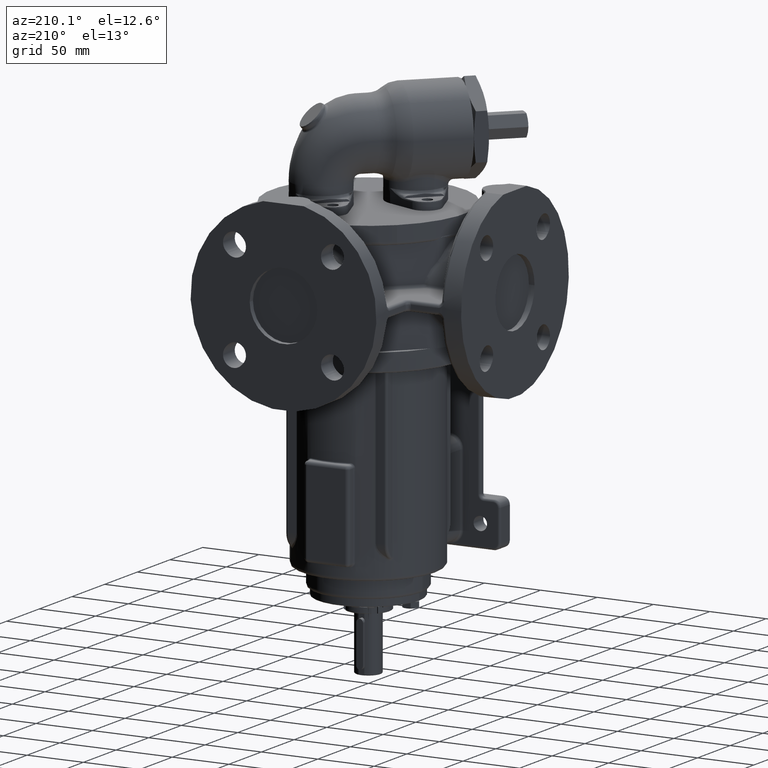
[diagram: clean part render]
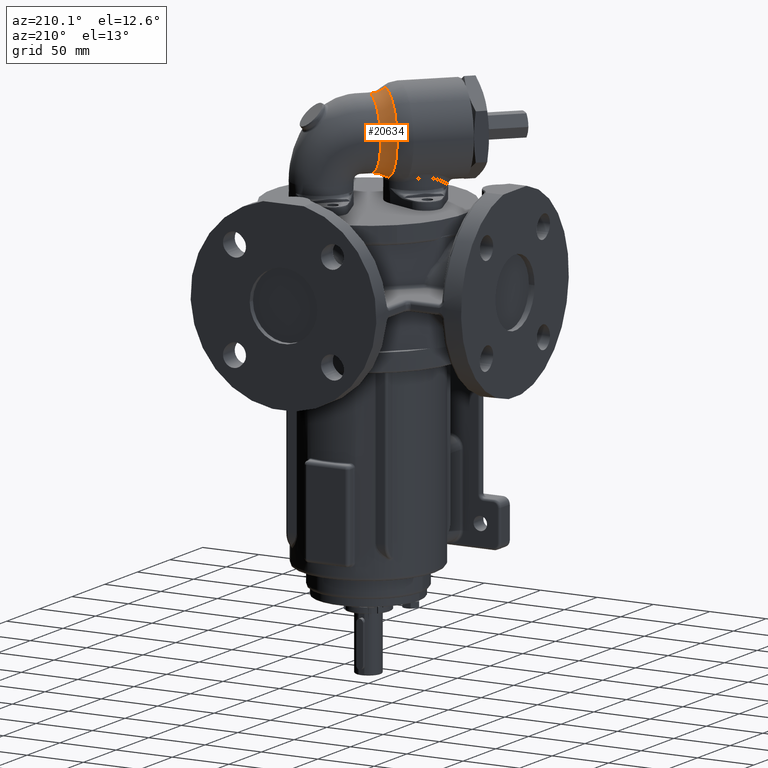
[diagram: same view with one face highlighted and labeled with its STEP entity id]
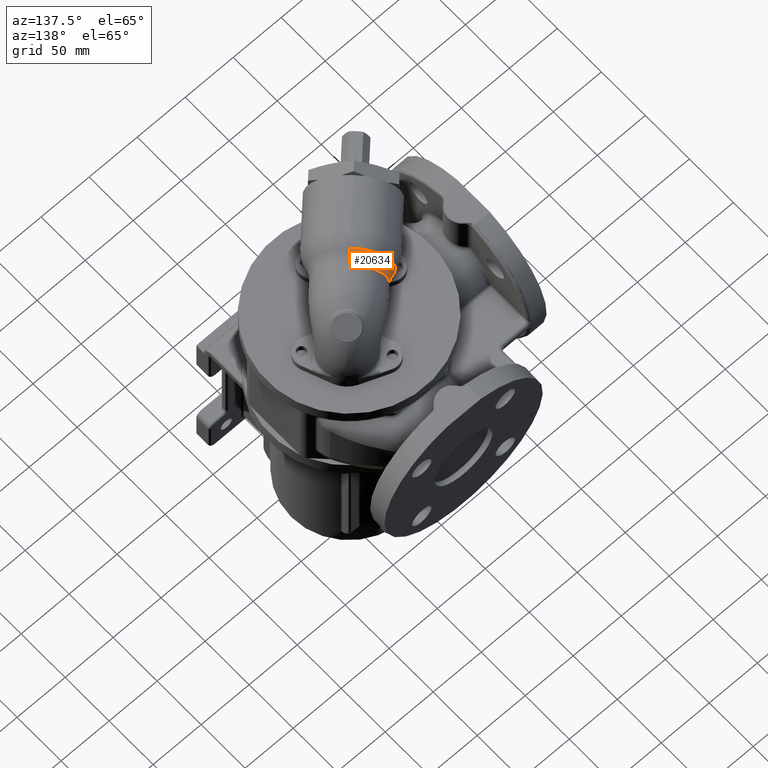
[diagram: same view with one face highlighted and labeled with its STEP entity id]
A machine part, auxiliary view. The second image highlights one B-rep face of the part: STEP entity #20634.
A second angle (auxiliary view) of the same face is appended — the face is thin or edge-on in the first view.
In plain terms, the highlighted toroidal blend (fillet) surface has major radius 51 mm and minor (blend) radius 20 mm.
Its self-contained STEP definition (entity closure, byte-faithful):
#2315=CARTESIAN_POINT('',(-1.732149372372E1,-1.770389373560E0,
1.277722769904E2));
#2316=CARTESIAN_POINT('',(-1.645948378693E1,-1.987988503852E0,
1.278796190056E2));
#2317=CARTESIAN_POINT('',(-1.472824232996E1,-2.508128496690E0,
1.280078359196E2));
#2318=CARTESIAN_POINT('',(-1.204520258204E1,-3.667754195904E0,
1.280381360435E2));
#2319=CARTESIAN_POINT('',(-9.483008962168E0,-5.240664378846E0,
1.279995629278E2));
#2320=CARTESIAN_POINT('',(-7.967286821456E0,-6.528402722491E0,
1.279843683349E2));
#2321=CARTESIAN_POINT('',(-7.247844508027E0,-7.247844508027E0,
1.279843682149E2));
#2323=CARTESIAN_POINT('',(-1.060660171780E0,-1.060660171780E0,1.1E2));
#2324=DIRECTION('',(7.071067811865E-1,-7.071067811865E-1,0.E0));
#2325=DIRECTION('',(0.E0,0.E0,1.E0));
#2326=AXIS2_PLACEMENT_3D('',#2323,#2324,#2325);
#2328=CARTESIAN_POINT('',(-1.060660171780E0,-1.060660171780E0,1.61E2));
#2329=DIRECTION('',(7.071067811865E-1,7.071067811865E-1,0.E0));
#2330=DIRECTION('',(0.E0,0.E0,-1.E0));
#2331=AXIS2_PLACEMENT_3D('',#2328,#2329,#2330);
#2333=CARTESIAN_POINT('',(-1.060660171780E0,-1.060660171780E0,2.12E2));
#2334=DIRECTION('',(-7.071067811865E-1,7.071067811865E-1,0.E0));
#2335=DIRECTION('',(0.E0,0.E0,-1.E0));
#2336=AXIS2_PLACEMENT_3D('',#2333,#2334,#2335);
#2368=CARTESIAN_POINT('',(-1.732149372372E1,-1.770389373560E0,
1.277722769904E2));
#2370=CARTESIAN_POINT('',(-9.545941546018E0,-9.545941546018E0,1.61E2));
#2371=DIRECTION('',(7.071067811865E-1,7.071067811865E-1,0.E0));
#2372=DIRECTION('',(-2.221586336050E-1,2.221586336050E-1,-9.493635146926E-1));
#2373=AXIS2_PLACEMENT_3D('',#2370,#2371,#2372);
#13618=CARTESIAN_POINT('',(-1.060660171780E0,-1.060660171780E0,1.92E2));
#13619=CARTESIAN_POINT('',(-9.545941546018E0,-9.545941546018E0,1.96E2));
#13620=VERTEX_POINT('',#13618);
#13621=VERTEX_POINT('',#13619);
#13622=CARTESIAN_POINT('',(-1.060660171780E0,-1.060660171780E0,1.3E2));
#13623=VERTEX_POINT('',#13622);
#13627=VERTEX_POINT('',#2368);
#13630=VERTEX_POINT('',#2321);
#20618=CARTESIAN_POINT('',(-1.060660171780E0,-1.060660171780E0,1.61E2));
#20619=DIRECTION('',(-7.071067811865E-1,-7.071067811865E-1,0.E0));
#20620=DIRECTION('',(0.E0,0.E0,-1.E0));
#20621=AXIS2_PLACEMENT_3D('',#20618,#20619,#20620);
#20622=TOROIDAL_SURFACE('',#20621,5.1E1,2.E1);
#20623=ORIENTED_EDGE('',*,*,#20608,.T.);
#20625=ORIENTED_EDGE('',*,*,#20624,.F.);
#20627=ORIENTED_EDGE('',*,*,#20626,.T.);
#20629=ORIENTED_EDGE('',*,*,#20628,.T.);
#20631=ORIENTED_EDGE('',*,*,#20630,.F.);
#20632=EDGE_LOOP('',(#20623,#20625,#20627,#20629,#20631));
#20633=FACE_OUTER_BOUND('',#20632,.F.);
#20634=ADVANCED_FACE('',(#20633),#20622,.F.);
#2322=B_SPLINE_CURVE_WITH_KNOTS('',3,(#2315,#2316,#2317,#2318,#2319,#2320,
#2321),.UNSPECIFIED.,.F.,.F.,(4,1,1,1,4),(0.E0,2.5E-1,5.E-1,7.5E-1,1.E0),
.UNSPECIFIED.);
#2327=CIRCLE('',#2326,2.E1);
#2332=CIRCLE('',#2331,3.1E1);
#2337=CIRCLE('',#2336,2.E1);
#2374=CIRCLE('',#2373,3.5E1);
#20608=EDGE_CURVE('',#13627,#13630,#2322,.T.);
#20624=EDGE_CURVE('',#13623,#13630,#2327,.T.);
#20626=EDGE_CURVE('',#13623,#13620,#2332,.T.);
#20628=EDGE_CURVE('',#13620,#13621,#2337,.T.);
#20630=EDGE_CURVE('',#13627,#13621,#2374,.T.);